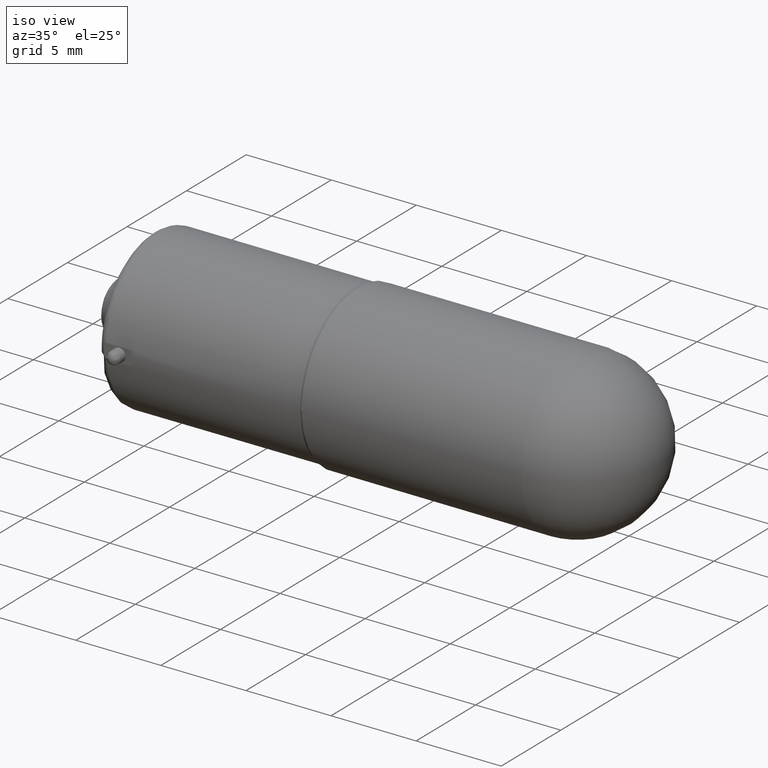
[diagram: clean part render]
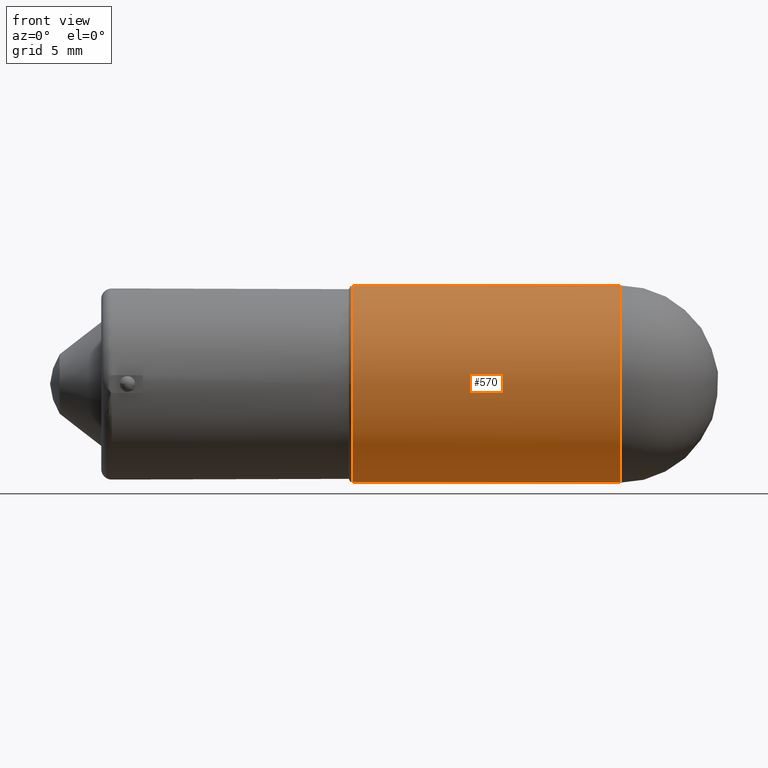
[diagram: tour spotlight — one face highlighted and labeled with its STEP entity id]
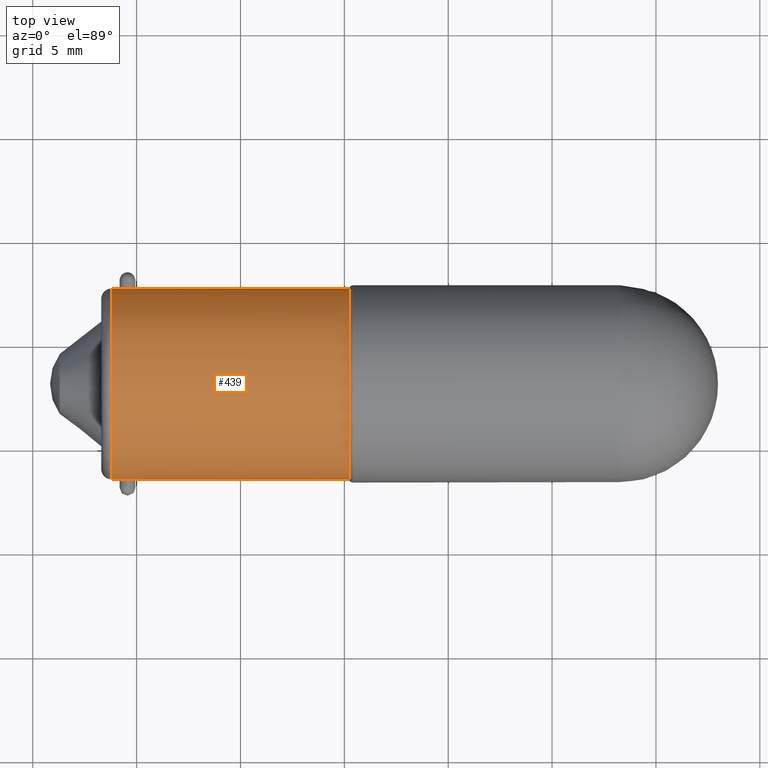
[diagram: tour spotlight — one face highlighted and labeled with its STEP entity id]
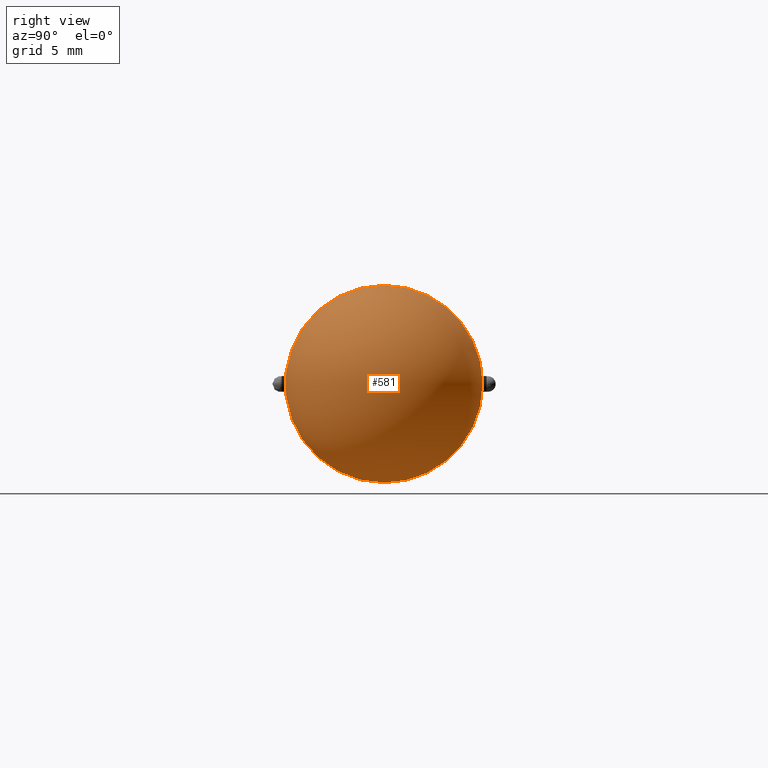
[diagram: tour spotlight — one face highlighted and labeled with its STEP entity id]
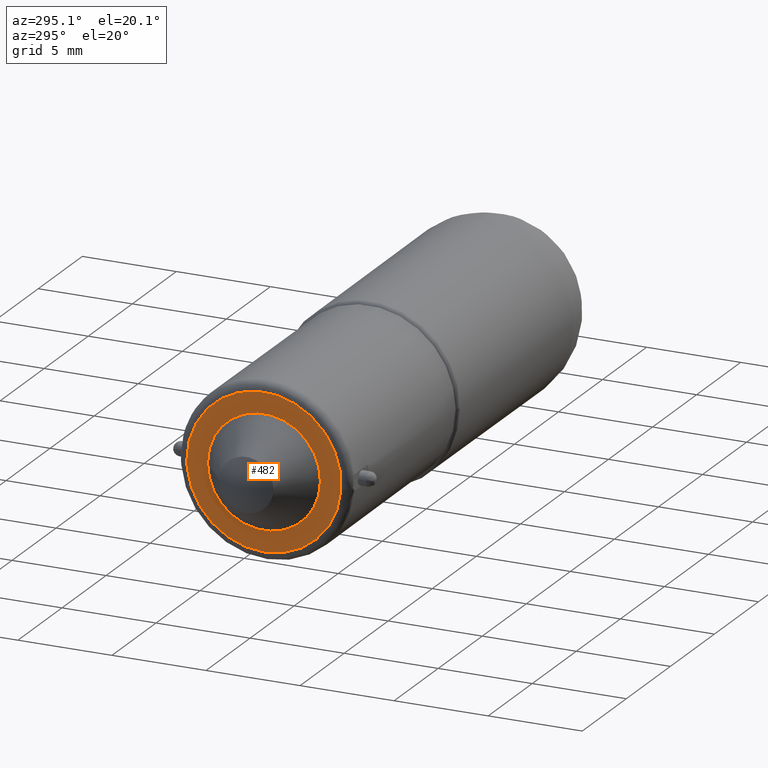
[diagram: tour spotlight — one face highlighted and labeled with its STEP entity id]
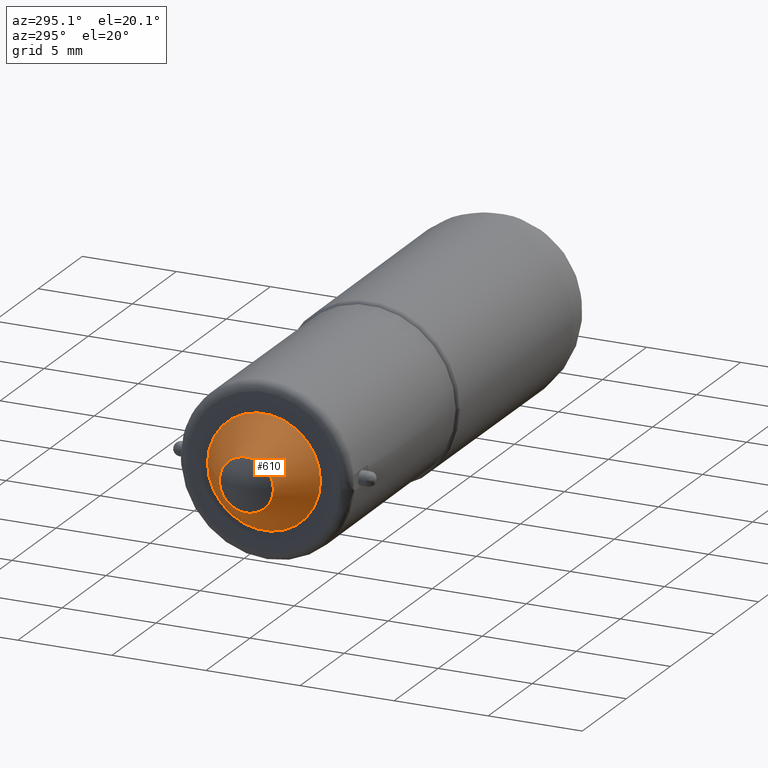
[diagram: tour spotlight — one face highlighted and labeled with its STEP entity id]
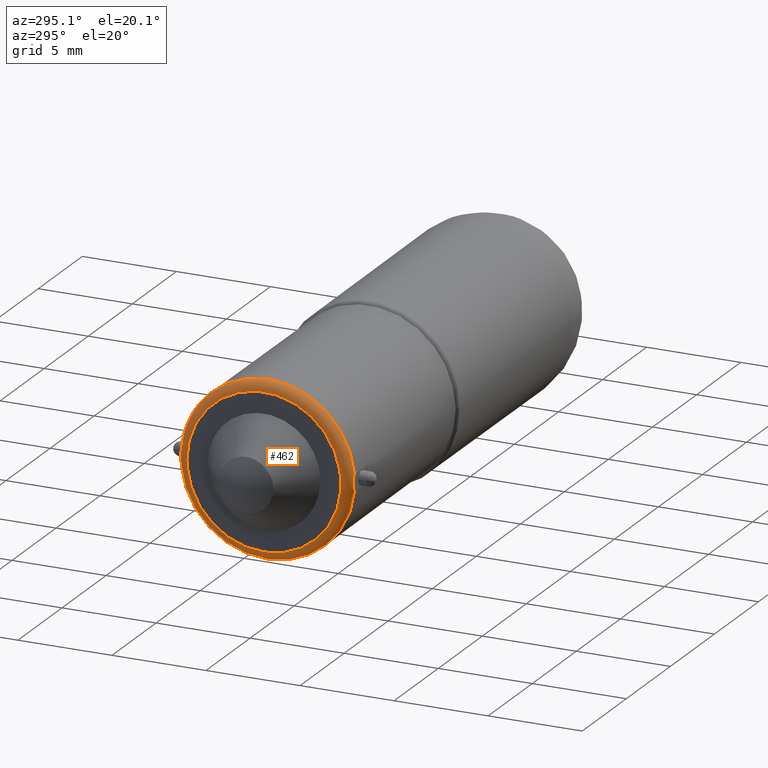
[diagram: tour spotlight — one face highlighted and labeled with its STEP entity id]
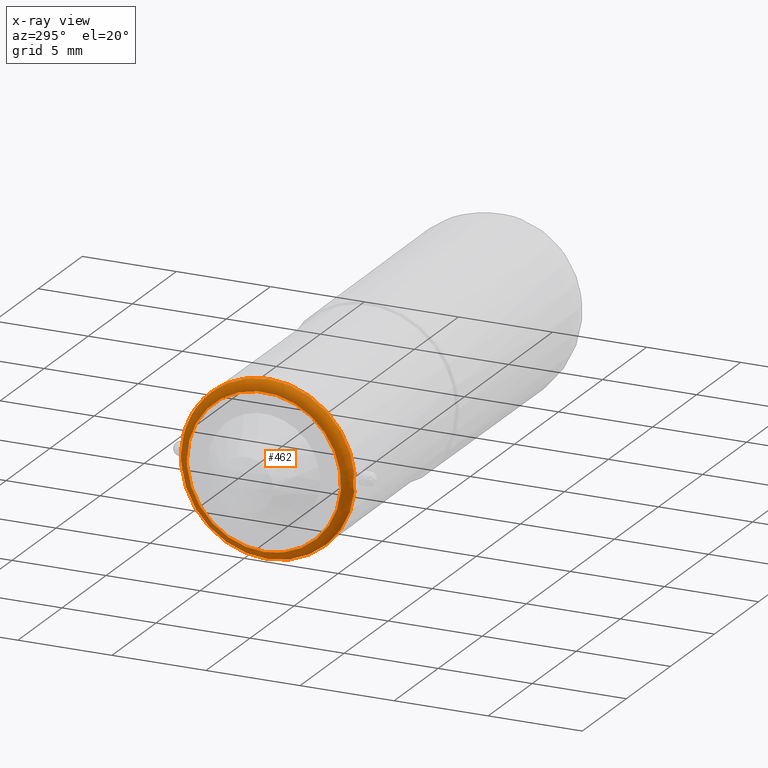
[diagram: x-ray of the same camera — body ghosted, this tour face saturated]
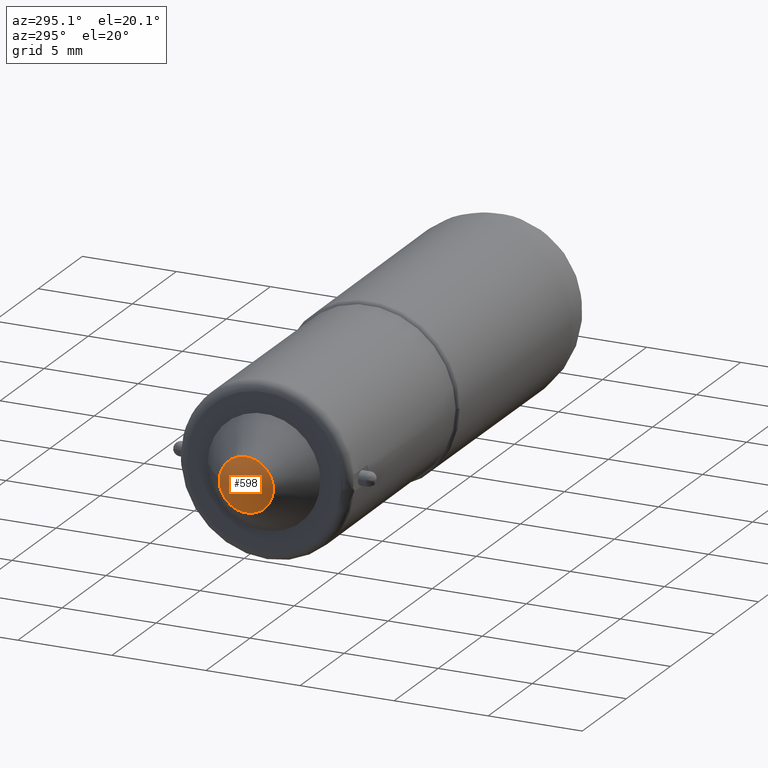
[diagram: tour spotlight — one face highlighted and labeled with its STEP entity id]
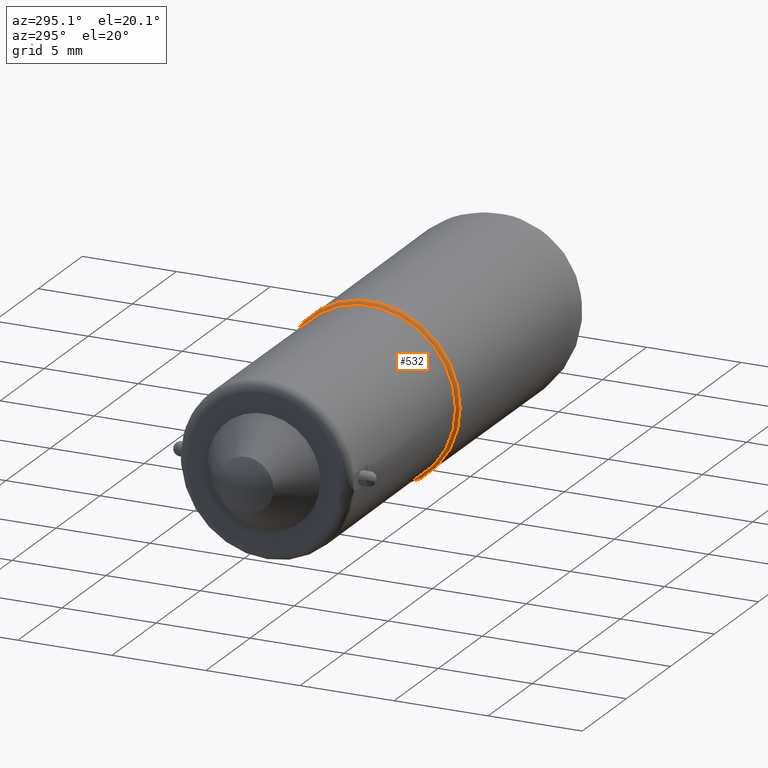
[diagram: tour spotlight — one face highlighted and labeled with its STEP entity id]
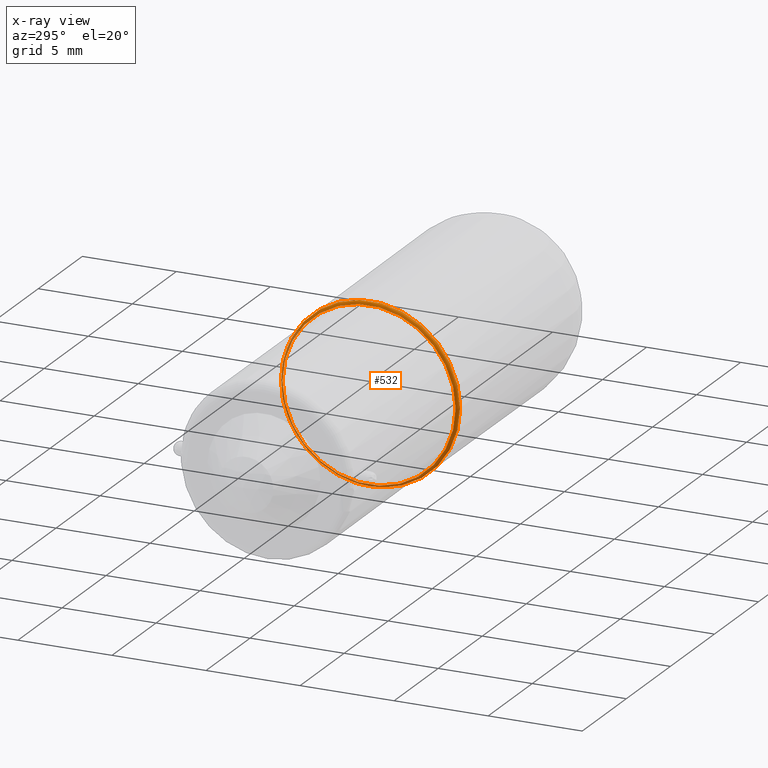
[diagram: x-ray of the same camera — body ghosted, this tour face saturated]
A machine part: a face-by-face anatomy tour. The part has 16 B-rep faces; the first image is the clean iso view, then the 8 largest visible faces are spotlighted one at a time (largest first), each with its STEP entity span.

Face 1 — front view, entity #570. In plain terms, the highlighted cylindrical surface (bore or boss wall) has radius 4.75 mm, axis along (1, 0, 0).
Definition (entity closure, byte-faithful):
#521=CARTESIAN_POINT('',(0.411338132245997,-1.603710488941711,1.176160E-015));
#522=VERTEX_POINT('',#521);
#523=CARTESIAN_POINT('',(0.411338132245997,3.146289511058293,0.0));
#524=DIRECTION('',(-1.0,0.0,0.0));
#525=DIRECTION('',(0.0,1.0,0.0));
#526=AXIS2_PLACEMENT_3D('',#523,#524,#525);
#527=CIRCLE('',#526,4.750000000000004);
#528=EDGE_CURVE('',#522,#522,#527,.T.);
#533=CARTESIAN_POINT('',(6.744115670753672,3.146289511058293,0.0));
#534=DIRECTION('',(1.0,0.0,0.0));
#535=DIRECTION('',(0.0,1.0,0.0));
#536=AXIS2_PLACEMENT_3D('',#533,#534,#535);
#537=CYLINDRICAL_SURFACE('',#536,4.750000000000003);
#538=CARTESIAN_POINT('',(13.270542376571717,7.896289511058299,0.0));
#539=VERTEX_POINT('',#538);
#540=CARTESIAN_POINT('',(13.270542376571717,3.146289511058303,4.750000000000006));
#541=VERTEX_POINT('',#540);
#542=CARTESIAN_POINT('',(13.270542376571717,3.146289511058293,0.0));
#543=DIRECTION('',(1.0,0.0,0.0));
#544=DIRECTION('',(0.0,1.0,0.0));
#545=AXIS2_PLACEMENT_3D('',#542,#543,#544);
#546=CIRCLE('',#545,4.750000000000006);
#547=EDGE_CURVE('',#539,#541,#546,.T.);
#548=ORIENTED_EDGE('',*,*,#547,.F.);
#549=CARTESIAN_POINT('',(13.270542376571717,3.146289511058301,-4.750000000000006));
#550=VERTEX_POINT('',#549);
#551=CARTESIAN_POINT('',(13.270542376571717,3.146289511058293,0.0));
#552=DIRECTION('',(1.0,0.0,0.0));
#553=DIRECTION('',(0.0,1.0,0.0));
#554=AXIS2_PLACEMENT_3D('',#551,#552,#553);
#555=CIRCLE('',#554,4.750000000000006);
#556=EDGE_CURVE('',#550,#539,#555,.T.);
#557=ORIENTED_EDGE('',*,*,#556,.F.);
#558=CARTESIAN_POINT('',(13.270542376571717,3.146289511058293,0.0));
#559=DIRECTION('',(1.0,0.0,0.0));
#560=DIRECTION('',(0.0,1.0,0.0));
#561=AXIS2_PLACEMENT_3D('',#558,#559,#560);
#562=CIRCLE('',#561,4.750000000000006);
#563=EDGE_CURVE('',#541,#550,#562,.T.);
#564=ORIENTED_EDGE('',*,*,#563,.F.);
#565=EDGE_LOOP('',(#548,#557,#564));
#566=FACE_OUTER_BOUND('',#565,.T.);
#567=ORIENTED_EDGE('',*,*,#528,.F.);
#568=EDGE_LOOP('',(#567));
#569=FACE_BOUND('',#568,.T.);
#570=ADVANCED_FACE('',(#566,#569),#537,.T.);

Face 2 — top view, entity #439. In plain terms, the highlighted cylindrical surface (bore or boss wall) has radius 4.6 mm, axis along (1, 0, 0).
Definition (entity closure, byte-faithful):
#256=CARTESIAN_POINT('',(-9.705609115138564,7.726289511058290,-0.428485705712584));
#257=VERTEX_POINT('',#256);
#258=CARTESIAN_POINT('',(-9.705609115138564,7.726289511058290,0.428485705712584));
#259=VERTEX_POINT('',#258);
#260=CARTESIAN_POINT('',(-9.705609115138564,3.146289511058293,0.0));
#261=DIRECTION('',(1.0,0.0,0.0));
#262=DIRECTION('',(0.0,1.0,0.0));
#263=AXIS2_PLACEMENT_3D('',#260,#261,#262);
#264=CIRCLE('',#263,4.599999999999999);
#265=EDGE_CURVE('',#257,#259,#264,.T.);
#281=CARTESIAN_POINT('',(-11.205609115138566,7.726289511058290,-0.428485705712584));
#282=VERTEX_POINT('',#281);
#283=CARTESIAN_POINT('',(-11.205609115138566,7.726289511058290,-0.428485705712584));
#284=DIRECTION('',(1.0,0.0,0.0));
#285=VECTOR('',#284,1.500000000000002);
#286=LINE('',#283,#285);
#287=EDGE_CURVE('',#282,#257,#286,.T.);
#289=CARTESIAN_POINT('',(-11.205609115138566,7.726289511058290,0.428485705712584));
#290=VERTEX_POINT('',#289);
#313=CARTESIAN_POINT('',(-9.705609115138564,7.726289511058290,0.428485705712584));
#314=DIRECTION('',(-1.0,0.0,0.0));
#315=VECTOR('',#314,1.500000000000002);
#316=LINE('',#313,#315);
#317=EDGE_CURVE('',#259,#290,#316,.T.);
#331=CARTESIAN_POINT('',(-9.705609115138564,-1.433710488941706,0.428485705712578));
#332=VERTEX_POINT('',#331);
#333=CARTESIAN_POINT('',(-9.705609115138564,-1.433710488941706,-0.428485705712578));
#334=VERTEX_POINT('',#333);
#335=CARTESIAN_POINT('',(-9.705609115138564,3.146289511058293,0.0));
#336=DIRECTION('',(1.0,0.0,0.0));
#337=DIRECTION('',(0.0,1.0,0.0));
#338=AXIS2_PLACEMENT_3D('',#335,#336,#337);
#339=CIRCLE('',#338,4.599999999999999);
#340=EDGE_CURVE('',#332,#334,#339,.T.);
#356=CARTESIAN_POINT('',(-11.205609115138566,-1.433710488941706,0.428485705712578));
#357=VERTEX_POINT('',#356);
#358=CARTESIAN_POINT('',(-11.205609115138566,-1.433710488941706,0.428485705712578));
#359=DIRECTION('',(1.0,0.0,0.0));
#360=VECTOR('',#359,1.500000000000002);
#361=LINE('',#358,#360);
#362=EDGE_CURVE('',#357,#332,#361,.T.);
#364=CARTESIAN_POINT('',(-11.205609115138566,-1.433710488941706,-0.428485705712578));
#365=VERTEX_POINT('',#364);
#388=CARTESIAN_POINT('',(-9.705609115138564,-1.433710488941706,-0.428485705712578));
#389=DIRECTION('',(-1.0,0.0,0.0));
#390=VECTOR('',#389,1.500000000000002);
#391=LINE('',#388,#390);
#392=EDGE_CURVE('',#334,#365,#391,.T.);
#401=CARTESIAN_POINT('',(-5.743960075101469,3.146289511058293,0.0));
#402=DIRECTION('',(1.0,0.0,0.0));
#403=DIRECTION('',(0.0,1.0,0.0));
#404=AXIS2_PLACEMENT_3D('',#401,#402,#403);
#405=CYLINDRICAL_SURFACE('',#404,4.599999999999999);
#406=ORIENTED_EDGE('',*,*,#287,.T.);
#407=ORIENTED_EDGE('',*,*,#265,.T.);
#408=ORIENTED_EDGE('',*,*,#317,.T.);
#409=CARTESIAN_POINT('',(-11.205609115138564,3.146289511058293,0.0));
#410=DIRECTION('',(-1.0,0.0,0.0));
#411=DIRECTION('',(0.0,-1.0,0.0));
#412=AXIS2_PLACEMENT_3D('',#409,#410,#411);
#413=CIRCLE('',#412,4.599999999999999);
#414=EDGE_CURVE('',#357,#290,#413,.T.);
#415=ORIENTED_EDGE('',*,*,#414,.F.);
#416=ORIENTED_EDGE('',*,*,#362,.T.);
#417=ORIENTED_EDGE('',*,*,#340,.T.);
#418=ORIENTED_EDGE('',*,*,#392,.T.);
#419=CARTESIAN_POINT('',(-11.205609115138564,3.146289511058293,0.0));
#420=DIRECTION('',(-1.0,0.0,0.0));
#421=DIRECTION('',(0.0,-1.0,0.0));
#422=AXIS2_PLACEMENT_3D('',#419,#420,#421);
#423=CIRCLE('',#422,4.599999999999999);
#424=EDGE_CURVE('',#282,#365,#423,.T.);
#425=ORIENTED_EDGE('',*,*,#424,.F.);
#426=EDGE_LOOP('',(#406,#407,#408,#415,#416,#417,#418,#425));
#427=FACE_OUTER_BOUND('',#426,.T.);
#428=CARTESIAN_POINT('',(0.217688964935625,7.746289511058293,0.0));
#429=VERTEX_POINT('',#428);
#430=CARTESIAN_POINT('',(0.217688964935625,3.146289511058293,0.0));
#431=DIRECTION('',(1.0,0.0,0.0));
#432=DIRECTION('',(0.0,1.0,0.0));
#433=AXIS2_PLACEMENT_3D('',#430,#431,#432);
#434=CIRCLE('',#433,4.600000000000001);
#435=EDGE_CURVE('',#429,#429,#434,.T.);
#436=ORIENTED_EDGE('',*,*,#435,.F.);
#437=EDGE_LOOP('',(#436));
#438=FACE_BOUND('',#437,.T.);
#439=ADVANCED_FACE('',(#427,#438),#405,.T.);

Face 3 — right view, entity #581. In plain terms, the highlighted spherical surface has radius 4.75 mm.
Definition (entity closure, byte-faithful):
#538=CARTESIAN_POINT('',(13.270542376571717,7.896289511058299,0.0));
#539=VERTEX_POINT('',#538);
#540=CARTESIAN_POINT('',(13.270542376571717,3.146289511058303,4.750000000000006));
#541=VERTEX_POINT('',#540);
#542=CARTESIAN_POINT('',(13.270542376571717,3.146289511058293,0.0));
#543=DIRECTION('',(1.0,0.0,0.0));
#544=DIRECTION('',(0.0,1.0,0.0));
#545=AXIS2_PLACEMENT_3D('',#542,#543,#544);
#546=CIRCLE('',#545,4.750000000000006);
#547=EDGE_CURVE('',#539,#541,#546,.T.);
#549=CARTESIAN_POINT('',(13.270542376571717,3.146289511058301,-4.750000000000006));
#550=VERTEX_POINT('',#549);
#551=CARTESIAN_POINT('',(13.270542376571717,3.146289511058293,0.0));
#552=DIRECTION('',(1.0,0.0,0.0));
#553=DIRECTION('',(0.0,1.0,0.0));
#554=AXIS2_PLACEMENT_3D('',#551,#552,#553);
#555=CIRCLE('',#554,4.750000000000006);
#556=EDGE_CURVE('',#550,#539,#555,.T.);
#558=CARTESIAN_POINT('',(13.270542376571717,3.146289511058293,0.0));
#559=DIRECTION('',(1.0,0.0,0.0));
#560=DIRECTION('',(0.0,1.0,0.0));
#561=AXIS2_PLACEMENT_3D('',#558,#559,#560);
#562=CIRCLE('',#561,4.750000000000006);
#563=EDGE_CURVE('',#541,#550,#562,.T.);
#571=CARTESIAN_POINT('',(13.270542376571719,3.146289511058303,0.0));
#572=DIRECTION('',(0.0,0.0,1.0));
#573=DIRECTION('',(1.0,0.0,0.0));
#574=AXIS2_PLACEMENT_3D('',#571,#572,#573);
#575=SPHERICAL_SURFACE('',#574,4.750000000000015);
#576=ORIENTED_EDGE('',*,*,#547,.T.);
#577=ORIENTED_EDGE('',*,*,#563,.T.);
#578=ORIENTED_EDGE('',*,*,#556,.T.);
#579=EDGE_LOOP('',(#576,#577,#578));
#580=FACE_OUTER_BOUND('',#579,.T.);
#581=ADVANCED_FACE('',(#580),#575,.T.);

Face 4 — auxiliary view, entity #482. In plain terms, the highlighted planar face has unit normal (-1, 0, 0).
Definition (entity closure, byte-faithful):
#451=CARTESIAN_POINT('',(-11.705609115138564,7.246289511058293,0.0));
#452=VERTEX_POINT('',#451);
#453=CARTESIAN_POINT('',(-11.705609115138564,3.146289511058293,0.0));
#454=DIRECTION('',(1.0,0.0,0.0));
#455=DIRECTION('',(0.0,-1.0,0.0));
#456=AXIS2_PLACEMENT_3D('',#453,#454,#455);
#457=CIRCLE('',#456,4.100000000000000);
#458=EDGE_CURVE('',#452,#452,#457,.T.);
#463=CARTESIAN_POINT('',(-11.705609115138564,6.946289511058293,0.0));
#464=DIRECTION('',(-1.0,0.0,0.0));
#465=DIRECTION('',(0.0,0.0,1.0));
#466=AXIS2_PLACEMENT_3D('',#463,#464,#465);
#467=PLANE('',#466);
#468=ORIENTED_EDGE('',*,*,#458,.F.);
#469=EDGE_LOOP('',(#468));
#470=FACE_OUTER_BOUND('',#469,.T.);
#471=CARTESIAN_POINT('',(-11.705609115138564,6.146289511058294,0.0));
#472=VERTEX_POINT('',#471);
#473=CARTESIAN_POINT('',(-11.705609115138564,3.146289511058293,0.0));
#474=DIRECTION('',(1.0,0.0,0.0));
#475=DIRECTION('',(0.0,1.0,0.0));
#476=AXIS2_PLACEMENT_3D('',#473,#474,#475);
#477=CIRCLE('',#476,3.000000000000001);
#478=EDGE_CURVE('',#472,#472,#477,.T.);
#479=ORIENTED_EDGE('',*,*,#478,.T.);
#480=EDGE_LOOP('',(#479));
#481=FACE_BOUND('',#480,.T.);
#482=ADVANCED_FACE('',(#470,#481),#467,.T.);

Face 5 — auxiliary view, entity #610. In plain terms, the highlighted conical surface has half-angle 37.973 deg.
Definition (entity closure, byte-faithful):
#471=CARTESIAN_POINT('',(-11.705609115138564,6.146289511058294,0.0));
#472=VERTEX_POINT('',#471);
#473=CARTESIAN_POINT('',(-11.705609115138564,3.146289511058293,0.0));
#474=DIRECTION('',(1.0,0.0,0.0));
#475=DIRECTION('',(0.0,1.0,0.0));
#476=AXIS2_PLACEMENT_3D('',#473,#474,#475);
#477=CIRCLE('',#476,3.000000000000001);
#478=EDGE_CURVE('',#472,#472,#477,.T.);
#587=CARTESIAN_POINT('',(-13.705609115138564,4.585229910032995,0.0));
#588=VERTEX_POINT('',#587);
#589=CARTESIAN_POINT('',(-13.705609115138564,3.146289511058293,0.0));
#590=DIRECTION('',(1.0,0.0,0.0));
#591=DIRECTION('',(0.0,1.0,0.0));
#592=AXIS2_PLACEMENT_3D('',#589,#590,#591);
#593=CIRCLE('',#592,1.438940398974702);
#594=EDGE_CURVE('',#588,#588,#593,.T.);
#599=CARTESIAN_POINT('',(-12.705609115138564,3.146289511058293,0.0));
#600=DIRECTION('',(1.0,0.0,0.0));
#601=DIRECTION('',(0.0,1.0,0.0));
#602=AXIS2_PLACEMENT_3D('',#599,#600,#601);
#603=CONICAL_SURFACE('',#602,2.219470199487352,37.973099026776005);
#604=ORIENTED_EDGE('',*,*,#478,.F.);
#605=EDGE_LOOP('',(#604));
#606=FACE_OUTER_BOUND('',#605,.T.);
#607=ORIENTED_EDGE('',*,*,#594,.T.);
#608=EDGE_LOOP('',(#607));
#609=FACE_BOUND('',#608,.T.);
#610=ADVANCED_FACE('',(#606,#609),#603,.T.);

Face 6 — auxiliary view, entity #462. An x-ray twin of the same camera follows (body ghosted, this face saturated) — the face is partly hidden behind the body. In plain terms, the highlighted toroidal blend (fillet) surface has major radius 4.1 mm and minor (blend) radius 0.5 mm.
Definition (entity closure, byte-faithful):
#281=CARTESIAN_POINT('',(-11.205609115138566,7.726289511058290,-0.428485705712584));
#282=VERTEX_POINT('',#281);
#289=CARTESIAN_POINT('',(-11.205609115138566,7.726289511058290,0.428485705712584));
#290=VERTEX_POINT('',#289);
#291=CARTESIAN_POINT('',(-11.205609115138566,7.726289511058290,0.428485705712594));
#292=CARTESIAN_POINT('',(-11.213493394584956,7.726289511058290,0.428485705712594));
#293=CARTESIAN_POINT('',(-11.222599724750937,7.726289511058290,0.425919028337451));
#294=CARTESIAN_POINT('',(-11.240301847795918,7.726289511058290,0.416661973075307));
#295=CARTESIAN_POINT('',(-11.250828480085829,7.726289511058290,0.406674612086121));
#296=CARTESIAN_POINT('',(-11.273318155992227,7.726289511058290,0.379013964780377));
#297=CARTESIAN_POINT('',(-11.285928217333375,7.726289511058290,0.353713346548038));
#298=CARTESIAN_POINT('',(-11.334050955553060,7.726289511058290,0.233178343825166));
#299=CARTESIAN_POINT('',(-11.345609115138569,7.726289511058290,0.106228825513143));
#300=CARTESIAN_POINT('',(-11.345609115138569,7.726289511058290,0.0));
#301=CARTESIAN_POINT('',(-11.345609115138569,7.726289511058290,-0.106228825513143));
#302=CARTESIAN_POINT('',(-11.334050955553060,7.726289511058290,-0.233178343825166));
#303=CARTESIAN_POINT('',(-11.285928217333375,7.726289511058290,-0.353713346548038));
#304=CARTESIAN_POINT('',(-11.273318155992227,7.726289511058290,-0.379013964780377));
#305=CARTESIAN_POINT('',(-11.250828480085829,7.726289511058290,-0.406674612086121));
#306=CARTESIAN_POINT('',(-11.240301847795918,7.726289511058290,-0.416661973075307));
#307=CARTESIAN_POINT('',(-11.222599724750937,7.726289511058290,-0.425919028337451));
#308=CARTESIAN_POINT('',(-11.213493394584956,7.726289511058290,-0.428485705712594));
#309=CARTESIAN_POINT('',(-11.205609115138566,7.726289511058290,-0.428485705712594));
#310=B_SPLINE_CURVE_WITH_KNOTS('',3,(#291,#292,#293,#294,#295,#296,#297,#298,#299,#300,#301,#302,#303,#304,#305,#306,#307,#308,#309),.UNSPECIFIED.,.F.,.U.,(4,2,2,2,3,2,2,2,4),(-0.044928823907015,-0.042563540073097,-0.038935891326188,-0.031868647653943,0.0,0.031868647653943,0.038935891326188,0.042563540073097,0.044928823907015),.UNSPECIFIED.);
#311=EDGE_CURVE('',#290,#282,#310,.T.);
#356=CARTESIAN_POINT('',(-11.205609115138566,-1.433710488941706,0.428485705712578));
#357=VERTEX_POINT('',#356);
#364=CARTESIAN_POINT('',(-11.205609115138566,-1.433710488941706,-0.428485705712578));
#365=VERTEX_POINT('',#364);
#366=CARTESIAN_POINT('',(-11.205609115138566,-1.433710488941706,-0.428485705712578));
#367=CARTESIAN_POINT('',(-11.213493394584956,-1.433710488941706,-0.428485705712578));
#368=CARTESIAN_POINT('',(-11.222599724750937,-1.433710488941706,-0.425919028337445));
#369=CARTESIAN_POINT('',(-11.240301847795918,-1.433710488941706,-0.416661973075300));
#370=CARTESIAN_POINT('',(-11.250828480085829,-1.433710488941706,-0.406674612086114));
#371=CARTESIAN_POINT('',(-11.273318155992225,-1.433710488941706,-0.379013964780372));
#372=CARTESIAN_POINT('',(-11.285928217333369,-1.433710488941706,-0.353713346548035));
#373=CARTESIAN_POINT('',(-11.334050955553058,-1.433710488941706,-0.233178343825167));
#374=CARTESIAN_POINT('',(-11.345609115138567,-1.433710488941706,-0.106228825513144));
#375=CARTESIAN_POINT('',(-11.345609115138567,-1.433710488941706,0.0));
#376=CARTESIAN_POINT('',(-11.345609115138567,-1.433710488941706,0.106228825513144));
#377=CARTESIAN_POINT('',(-11.334050955553058,-1.433710488941706,0.233178343825167));
#378=CARTESIAN_POINT('',(-11.285928217333369,-1.433710488941706,0.353713346548035));
#379=CARTESIAN_POINT('',(-11.273318155992225,-1.433710488941706,0.379013964780372));
#380=CARTESIAN_POINT('',(-11.250828480085829,-1.433710488941706,0.406674612086114));
#381=CARTESIAN_POINT('',(-11.240301847795918,-1.433710488941706,0.416661973075300));
#382=CARTESIAN_POINT('',(-11.222599724750937,-1.433710488941706,0.425919028337445));
#383=CARTESIAN_POINT('',(-11.213493394584956,-1.433710488941706,0.428485705712578));
#384=CARTESIAN_POINT('',(-11.205609115138566,-1.433710488941706,0.428485705712578));
#385=B_SPLINE_CURVE_WITH_KNOTS('',3,(#366,#367,#368,#369,#370,#371,#372,#373,#374,#375,#376,#377,#378,#379,#380,#381,#382,#383,#384),.UNSPECIFIED.,.F.,.U.,(4,2,2,2,3,2,2,2,4),(-0.044928823907014,-0.042563540073097,-0.038935891326187,-0.031868647653943,0.0,0.031868647653943,0.038935891326187,0.042563540073097,0.044928823907014),.UNSPECIFIED.);
#386=EDGE_CURVE('',#365,#357,#385,.T.);
#409=CARTESIAN_POINT('',(-11.205609115138564,3.146289511058293,0.0));
#410=DIRECTION('',(-1.0,0.0,0.0));
#411=DIRECTION('',(0.0,-1.0,0.0));
#412=AXIS2_PLACEMENT_3D('',#409,#410,#411);
#413=CIRCLE('',#412,4.599999999999999);
#414=EDGE_CURVE('',#357,#290,#413,.T.);
#419=CARTESIAN_POINT('',(-11.205609115138564,3.146289511058293,0.0));
#420=DIRECTION('',(-1.0,0.0,0.0));
#421=DIRECTION('',(0.0,-1.0,0.0));
#422=AXIS2_PLACEMENT_3D('',#419,#420,#421);
#423=CIRCLE('',#422,4.599999999999999);
#424=EDGE_CURVE('',#282,#365,#423,.T.);
#440=CARTESIAN_POINT('',(-11.205609115138564,3.146289511058293,0.0));
#441=DIRECTION('',(1.0,0.0,0.0));
#442=DIRECTION('',(0.0,0.0,-1.0));
#443=AXIS2_PLACEMENT_3D('',#440,#441,#442);
#444=TOROIDAL_SURFACE('',#443,4.100000000000000,0.500000000000000);
#445=ORIENTED_EDGE('',*,*,#311,.T.);
#446=ORIENTED_EDGE('',*,*,#424,.T.);
#447=ORIENTED_EDGE('',*,*,#386,.T.);
#448=ORIENTED_EDGE('',*,*,#414,.T.);
#449=EDGE_LOOP('',(#445,#446,#447,#448));
#450=FACE_OUTER_BOUND('',#449,.T.);
#451=CARTESIAN_POINT('',(-11.705609115138564,7.246289511058293,0.0));
#452=VERTEX_POINT('',#451);
#453=CARTESIAN_POINT('',(-11.705609115138564,3.146289511058293,0.0));
#454=DIRECTION('',(1.0,0.0,0.0));
#455=DIRECTION('',(0.0,-1.0,0.0));
#456=AXIS2_PLACEMENT_3D('',#453,#454,#455);
#457=CIRCLE('',#456,4.100000000000000);
#458=EDGE_CURVE('',#452,#452,#457,.T.);
#459=ORIENTED_EDGE('',*,*,#458,.T.);
#460=EDGE_LOOP('',(#459));
#461=FACE_BOUND('',#460,.T.);
#462=ADVANCED_FACE('',(#450,#461),#444,.T.);

Face 7 — auxiliary view, entity #598. In plain terms, the highlighted spherical surface has radius 2.4638 mm.
Definition (entity closure, byte-faithful):
#582=CARTESIAN_POINT('',(-11.705609115138564,3.146289511058293,0.0));
#583=DIRECTION('',(0.0,0.0,1.0));
#584=DIRECTION('',(1.0,0.0,0.0));
#585=AXIS2_PLACEMENT_3D('',#582,#583,#584);
#586=SPHERICAL_SURFACE('',#585,2.463848508289719);
#587=CARTESIAN_POINT('',(-13.705609115138564,4.585229910032995,0.0));
#588=VERTEX_POINT('',#587);
#589=CARTESIAN_POINT('',(-13.705609115138564,3.146289511058293,0.0));
#590=DIRECTION('',(1.0,0.0,0.0));
#591=DIRECTION('',(0.0,1.0,0.0));
#592=AXIS2_PLACEMENT_3D('',#589,#590,#591);
#593=CIRCLE('',#592,1.438940398974702);
#594=EDGE_CURVE('',#588,#588,#593,.T.);
#595=ORIENTED_EDGE('',*,*,#594,.F.);
#596=EDGE_LOOP('',(#595));
#597=FACE_OUTER_BOUND('',#596,.T.);
#598=ADVANCED_FACE('',(#597),#586,.T.);

Face 8 — auxiliary view, entity #532. An x-ray twin of the same camera follows (body ghosted, this face saturated) — the face is partly hidden behind the body. In plain terms, the highlighted face is a freeform B-spline surface patch.
Definition (entity closure, byte-faithful):
#428=CARTESIAN_POINT('',(0.217688964935625,7.746289511058293,0.0));
#429=VERTEX_POINT('',#428);
#430=CARTESIAN_POINT('',(0.217688964935625,3.146289511058293,0.0));
#431=DIRECTION('',(1.0,0.0,0.0));
#432=DIRECTION('',(0.0,1.0,0.0));
#433=AXIS2_PLACEMENT_3D('',#430,#431,#432);
#434=CIRCLE('',#433,4.600000000000001);
#435=EDGE_CURVE('',#429,#429,#434,.T.);
#483=CARTESIAN_POINT('',(0.217688964935625,-1.453710488941707,1.139018E-015));
#484=CARTESIAN_POINT('',(0.256418798397698,-1.603710488941710,1.176160E-015));
#485=CARTESIAN_POINT('',(0.411338132245997,-1.603710488941710,1.176160E-015));
#486=CARTESIAN_POINT('',(0.217688964935625,-1.453710488941705,4.600000000000000));
#487=CARTESIAN_POINT('',(0.256418798397698,-1.603710488941708,4.750000000000003));
#488=CARTESIAN_POINT('',(0.411338132245997,-1.603710488941708,4.750000000000003));
#489=CARTESIAN_POINT('',(0.217688964935625,3.146289511058294,4.600000000000000));
#490=CARTESIAN_POINT('',(0.256418798397698,3.146289511058294,4.750000000000003));
#491=CARTESIAN_POINT('',(0.411338132245997,3.146289511058294,4.750000000000003));
#492=CARTESIAN_POINT('',(0.217688964935625,7.746289511058294,4.599999999999998));
#493=CARTESIAN_POINT('',(0.256418798397698,7.896289511058297,4.750000000000001));
#494=CARTESIAN_POINT('',(0.411338132245997,7.896289511058295,4.750000000000001));
#495=CARTESIAN_POINT('',(0.217688964935625,7.746289511058293,-1.139018E-015));
#496=CARTESIAN_POINT('',(0.256418798397698,7.896289511058296,-1.176160E-015));
#497=CARTESIAN_POINT('',(0.411338132245997,7.896289511058296,-1.176160E-015));
#498=CARTESIAN_POINT('',(0.217688964935625,7.746289511058290,-4.600000000000000));
#499=CARTESIAN_POINT('',(0.256418798397698,7.896289511058293,-4.750000000000003));
#500=CARTESIAN_POINT('',(0.411338132245997,7.896289511058294,-4.750000000000003));
#501=CARTESIAN_POINT('',(0.217688964935625,3.146289511058292,-4.600000000000000));
#502=CARTESIAN_POINT('',(0.256418798397698,3.146289511058292,-4.750000000000003));
#503=CARTESIAN_POINT('',(0.411338132245997,3.146289511058292,-4.750000000000003));
#504=CARTESIAN_POINT('',(0.217688964935625,-1.453710488941707,-4.599999999999998));
#505=CARTESIAN_POINT('',(0.256418798397698,-1.603710488941710,-4.750000000000001));
#506=CARTESIAN_POINT('',(0.411338132245997,-1.603710488941710,-4.750000000000001));
#507=CARTESIAN_POINT('',(0.217688964935625,-1.453710488941707,1.139018E-015));
#508=CARTESIAN_POINT('',(0.256418798397698,-1.603710488941710,1.176160E-015));
#509=CARTESIAN_POINT('',(0.411338132245997,-1.603710488941710,1.176160E-015));
#517=(BOUNDED_SURFACE()B_SPLINE_SURFACE(2,2,((#483,#486,#489,#492,#495,#498,#501,#504,#507),(#484,#487,#490,#493,#496,#499,#502,#505,#508),(#485,#488,#491,#494,#497,#500,#503,#506,#509)),.UNSPECIFIED.,.F.,.T.,.U.)B_SPLINE_SURFACE_WITH_KNOTS((3,3),(3,2,2,2,3),(-1.318116071652832,0.0),(0.0,1.570796326794897,3.141592653589793,4.712388980384690,6.283185307179586),.UNSPECIFIED.)GEOMETRIC_REPRESENTATION_ITEM()RATIONAL_B_SPLINE_SURFACE(((1.0,0.707106781186548,1.0,0.707106781186548,1.0,0.707106781186548,1.0,0.707106781186548,1.0),(0.790569415042086,0.559016994374941,0.790569415042086,0.559016994374941,0.790569415042086,0.559016994374941,0.790569415042086,0.559016994374941,0.790569415042086),(1.0,0.707106781186548,1.0,0.707106781186548,1.0,0.707106781186548,1.0,0.707106781186548,1.0)))REPRESENTATION_ITEM('')SURFACE());
#518=ORIENTED_EDGE('',*,*,#435,.T.);
#519=EDGE_LOOP('',(#518));
#520=FACE_OUTER_BOUND('',#519,.T.);
#521=CARTESIAN_POINT('',(0.411338132245997,-1.603710488941711,1.176160E-015));
#522=VERTEX_POINT('',#521);
#523=CARTESIAN_POINT('',(0.411338132245997,3.146289511058293,0.0));
#524=DIRECTION('',(-1.0,0.0,0.0));
#525=DIRECTION('',(0.0,1.0,0.0));
#526=AXIS2_PLACEMENT_3D('',#523,#524,#525);
#527=CIRCLE('',#526,4.750000000000004);
#528=EDGE_CURVE('',#522,#522,#527,.T.);
#529=ORIENTED_EDGE('',*,*,#528,.T.);
#530=EDGE_LOOP('',(#529));
#531=FACE_BOUND('',#530,.T.);
#532=ADVANCED_FACE('',(#520,#531),#517,.T.);